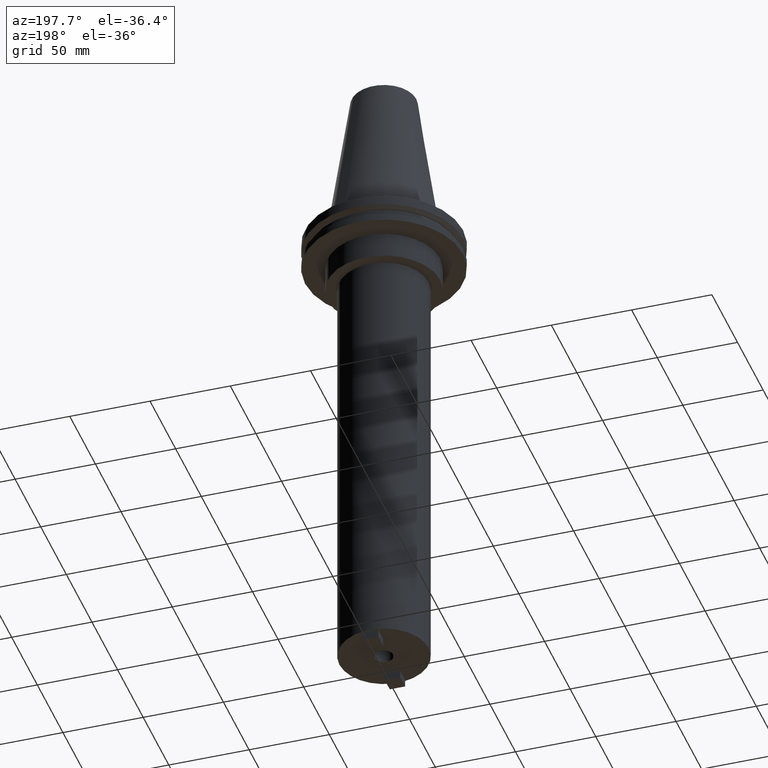
[diagram: clean part render]
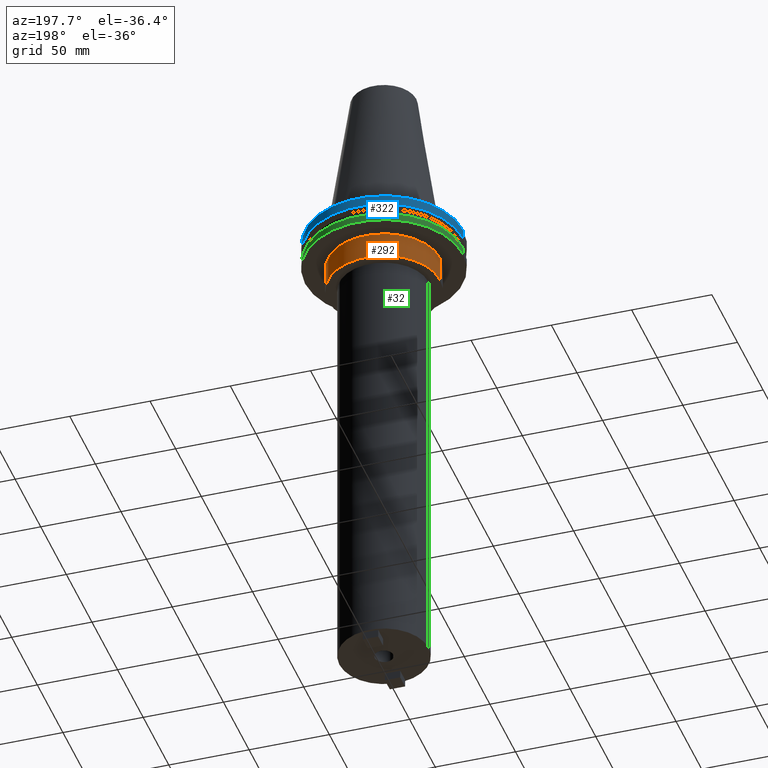
[diagram: same view with three faces highlighted in distinct colors, each labeled with its STEP entity id]
A machine part, auxiliary view with three faces highlighted in distinct colors.
Their STEP definitions:

[orange] entity #292 — the highlighted cylindrical surface (partial cylindrical patch) has radius 34.925 mm, axis along (-0, -0, 1).
#42 = LINE ( 'NONE', #802, #173 ) ;
#66 = CARTESIAN_POINT ( 'NONE',  ( 0.000000000000000000, 0.000000000000000000, -35.04999999999999716 ) ) ;
#70 = DIRECTION ( 'NONE',  ( 1.000000000000000000, 0.000000000000000000, 0.000000000000000000 ) ) ;
#85 = ORIENTED_EDGE ( 'NONE', *, *, #213, .T. ) ;
#88 = DIRECTION ( 'NONE',  ( 1.000000000000000000, 0.000000000000000000, 0.000000000000000000 ) ) ;
#116 = FACE_OUTER_BOUND ( 'NONE', #900, .T. ) ;
#125 = VERTEX_POINT ( 'NONE', #175 ) ;
#161 = DIRECTION ( 'NONE',  ( -0.000000000000000000, -0.000000000000000000, 1.000000000000000000 ) ) ;
#173 = VECTOR ( 'NONE', #1042, 1000.000000000000000 ) ;
#175 = CARTESIAN_POINT ( 'NONE',  ( 34.92499999999999716, 0.000000000000000000, -35.04999999999999716 ) ) ;
#188 = CIRCLE ( 'NONE', #475, 34.92499999999999716 ) ;
#194 = CARTESIAN_POINT ( 'NONE',  ( 0.000000000000000000, 0.000000000000000000, 101.5999999999999943 ) ) ;
#203 = VECTOR ( 'NONE', #377, 1000.000000000000000 ) ;
#213 = EDGE_CURVE ( 'NONE', #923, #1003, #970, .T. ) ;
#292 = ADVANCED_FACE ( 'NONE', ( #116 ), #706, .T. ) ;
#328 = VERTEX_POINT ( 'NONE', #961 ) ;
#373 = DIRECTION ( 'NONE',  ( -0.000000000000000000, -0.000000000000000000, 1.000000000000000000 ) ) ;
#377 = DIRECTION ( 'NONE',  ( -0.000000000000000000, -0.000000000000000000, 1.000000000000000000 ) ) ;
#445 = CARTESIAN_POINT ( 'NONE',  ( -34.92499999999999716, 4.277078946022130887E-15, 101.5999999999999943 ) ) ;
#475 = AXIS2_PLACEMENT_3D ( 'NONE', #835, #506, #70 ) ;
#506 = DIRECTION ( 'NONE',  ( -0.000000000000000000, -0.000000000000000000, 1.000000000000000000 ) ) ;
#563 = EDGE_CURVE ( 'NONE', #125, #328, #42, .T. ) ;
#658 = ORIENTED_EDGE ( 'NONE', *, *, #1081, .F. ) ;
#668 = ORIENTED_EDGE ( 'NONE', *, *, #701, .T. ) ;
#701 = EDGE_CURVE ( 'NONE', #125, #923, #945, .T. ) ;
#706 = CYLINDRICAL_SURFACE ( 'NONE', #944, 34.92499999999999716 ) ;
#801 = ORIENTED_EDGE ( 'NONE', *, *, #563, .F. ) ;
#802 = CARTESIAN_POINT ( 'NONE',  ( 34.92499999999999716, 0.000000000000000000, 101.5999999999999943 ) ) ;
#835 = CARTESIAN_POINT ( 'NONE',  ( 0.000000000000000000, 0.000000000000000000, -19.04999999999999716 ) ) ;
#900 = EDGE_LOOP ( 'NONE', ( #668, #85, #658, #801 ) ) ;
#923 = VERTEX_POINT ( 'NONE', #1022 ) ;
#944 = AXIS2_PLACEMENT_3D ( 'NONE', #194, #373, #1043 ) ;
#945 = CIRCLE ( 'NONE', #1055, 34.92499999999999716 ) ;
#953 = CARTESIAN_POINT ( 'NONE',  ( -34.92499999999999716, 4.277078946022130887E-15, -19.04999999999999716 ) ) ;
#961 = CARTESIAN_POINT ( 'NONE',  ( 34.92499999999999716, 0.000000000000000000, -19.04999999999999716 ) ) ;
#970 = LINE ( 'NONE', #445, #203 ) ;
#1003 = VERTEX_POINT ( 'NONE', #953 ) ;
#1022 = CARTESIAN_POINT ( 'NONE',  ( -34.92499999999999716, 4.277078946022130887E-15, -35.04999999999999716 ) ) ;
#1042 = DIRECTION ( 'NONE',  ( -0.000000000000000000, -0.000000000000000000, 1.000000000000000000 ) ) ;
#1043 = DIRECTION ( 'NONE',  ( 1.000000000000000000, 0.000000000000000000, 0.000000000000000000 ) ) ;
#1055 = AXIS2_PLACEMENT_3D ( 'NONE', #66, #161, #88 ) ;
#1081 = EDGE_CURVE ( 'NONE', #328, #1003, #188, .T. ) ;

[blue] entity #322 — the highlighted cylindrical surface (partial cylindrical patch) has radius 49.215 mm, axis along (-0, -0, 1).
#4 = VECTOR ( 'NONE', #315, 1000.000000000000000 ) ;
#27 = ORIENTED_EDGE ( 'NONE', *, *, #690, .T. ) ;
#41 = VERTEX_POINT ( 'NONE', #418 ) ;
#48 = AXIS2_PLACEMENT_3D ( 'NONE', #1063, #149, #653 ) ;
#121 = AXIS2_PLACEMENT_3D ( 'NONE', #779, #536, #365 ) ;
#128 = CARTESIAN_POINT ( 'NONE',  ( 49.21499999999999631, 0.000000000000000000, -1.499999999999987566 ) ) ;
#139 = VERTEX_POINT ( 'NONE', #189 ) ;
#149 = DIRECTION ( 'NONE',  ( -0.000000000000000000, -0.000000000000000000, 1.000000000000000000 ) ) ;
#176 = CARTESIAN_POINT ( 'NONE',  ( 49.21499999999999631, 0.000000000000000000, 101.5999999999999943 ) ) ;
#185 = EDGE_LOOP ( 'NONE', ( #283, #27, #812, #691 ) ) ;
#189 = CARTESIAN_POINT ( 'NONE',  ( 49.21500000000000341, 0.000000000000000000, -7.602389855251287187 ) ) ;
#223 = CIRCLE ( 'NONE', #48, 49.21500000000000341 ) ;
#244 = LINE ( 'NONE', #813, #4 ) ;
#283 = ORIENTED_EDGE ( 'NONE', *, *, #444, .T. ) ;
#284 = DIRECTION ( 'NONE',  ( 1.000000000000000000, 0.000000000000000000, 0.000000000000000000 ) ) ;
#294 = EDGE_CURVE ( 'NONE', #982, #745, #984, .T. ) ;
#303 = DIRECTION ( 'NONE',  ( -0.000000000000000000, -0.000000000000000000, 1.000000000000000000 ) ) ;
#315 = DIRECTION ( 'NONE',  ( -0.000000000000000000, -0.000000000000000000, 1.000000000000000000 ) ) ;
#322 = ADVANCED_FACE ( 'NONE', ( #790 ), #466, .T. ) ;
#365 = DIRECTION ( 'NONE',  ( 1.000000000000000000, 0.000000000000000000, 0.000000000000000000 ) ) ;
#403 = VECTOR ( 'NONE', #601, 1000.000000000000000 ) ;
#418 = CARTESIAN_POINT ( 'NONE',  ( -49.21500000000000341, 6.027099222003699404E-15, -7.602389855251287187 ) ) ;
#444 = EDGE_CURVE ( 'NONE', #139, #41, #223, .T. ) ;
#466 = CYLINDRICAL_SURFACE ( 'NONE', #121, 49.21499999999999631 ) ;
#536 = DIRECTION ( 'NONE',  ( -0.000000000000000000, -0.000000000000000000, 1.000000000000000000 ) ) ;
#553 = CARTESIAN_POINT ( 'NONE',  ( 0.000000000000000000, 0.000000000000000000, -1.499999999999987566 ) ) ;
#601 = DIRECTION ( 'NONE',  ( -0.000000000000000000, -0.000000000000000000, 1.000000000000000000 ) ) ;
#653 = DIRECTION ( 'NONE',  ( 1.000000000000000000, 0.000000000000000000, 0.000000000000000000 ) ) ;
#690 = EDGE_CURVE ( 'NONE', #41, #745, #244, .T. ) ;
#691 = ORIENTED_EDGE ( 'NONE', *, *, #916, .F. ) ;
#745 = VERTEX_POINT ( 'NONE', #904 ) ;
#779 = CARTESIAN_POINT ( 'NONE',  ( 0.000000000000000000, 0.000000000000000000, 101.5999999999999943 ) ) ;
#790 = FACE_OUTER_BOUND ( 'NONE', #185, .T. ) ;
#812 = ORIENTED_EDGE ( 'NONE', *, *, #294, .F. ) ;
#813 = CARTESIAN_POINT ( 'NONE',  ( -49.21499999999999631, 6.027099222003697826E-15, 101.5999999999999943 ) ) ;
#856 = AXIS2_PLACEMENT_3D ( 'NONE', #553, #303, #284 ) ;
#904 = CARTESIAN_POINT ( 'NONE',  ( -49.21499999999999631, 6.027099222003697826E-15, -1.499999999999987566 ) ) ;
#916 = EDGE_CURVE ( 'NONE', #139, #982, #1030, .T. ) ;
#982 = VERTEX_POINT ( 'NONE', #128 ) ;
#984 = CIRCLE ( 'NONE', #856, 49.21499999999999631 ) ;
#1030 = LINE ( 'NONE', #176, #403 ) ;
#1063 = CARTESIAN_POINT ( 'NONE',  ( 0.000000000000000000, 0.000000000000000000, -7.602389855251287187 ) ) ;

[green] entity #32 — the highlighted cylindrical surface (partial cylindrical patch) has radius 49.215 mm, axis along (-0, -0, 1).
#26 = DIRECTION ( 'NONE',  ( -0.000000000000000000, -0.000000000000000000, 1.000000000000000000 ) ) ;
#32 = ADVANCED_FACE ( 'NONE', ( #1077 ), #314, .T. ) ;
#89 = AXIS2_PLACEMENT_3D ( 'NONE', #160, #655, #165 ) ;
#95 = CARTESIAN_POINT ( 'NONE',  ( -49.21499999999998920, 6.027099222003697037E-15, 101.5999999999999943 ) ) ;
#112 = DIRECTION ( 'NONE',  ( 1.000000000000000000, 0.000000000000000000, 0.000000000000000000 ) ) ;
#160 = CARTESIAN_POINT ( 'NONE',  ( 0.000000000000000000, 0.000000000000000000, 101.5999999999999943 ) ) ;
#165 = DIRECTION ( 'NONE',  ( 1.000000000000000000, 0.000000000000000000, 0.000000000000000000 ) ) ;
#174 = EDGE_CURVE ( 'NONE', #869, #638, #768, .T. ) ;
#179 = CARTESIAN_POINT ( 'NONE',  ( 49.21499999999998920, 0.000000000000000000, -19.04999999999999716 ) ) ;
#286 = ORIENTED_EDGE ( 'NONE', *, *, #470, .F. ) ;
#314 = CYLINDRICAL_SURFACE ( 'NONE', #89, 49.21499999999998920 ) ;
#324 = CARTESIAN_POINT ( 'NONE',  ( 0.000000000000000000, 0.000000000000000000, -14.65761014474876944 ) ) ;
#383 = CIRCLE ( 'NONE', #651, 49.21499999999998920 ) ;
#404 = ORIENTED_EDGE ( 'NONE', *, *, #899, .T. ) ;
#405 = CARTESIAN_POINT ( 'NONE',  ( -49.21499999999998920, 6.027099222003697037E-15, -14.65761014474876944 ) ) ;
#416 = EDGE_LOOP ( 'NONE', ( #1083, #404, #286, #1060 ) ) ;
#456 = LINE ( 'NONE', #1044, #545 ) ;
#460 = DIRECTION ( 'NONE',  ( -0.000000000000000000, -0.000000000000000000, 1.000000000000000000 ) ) ;
#470 = EDGE_CURVE ( 'NONE', #827, #726, #383, .T. ) ;
#519 = CARTESIAN_POINT ( 'NONE',  ( 49.21499999999998920, 0.000000000000000000, -14.65761014474876944 ) ) ;
#542 = AXIS2_PLACEMENT_3D ( 'NONE', #606, #760, #112 ) ;
#545 = VECTOR ( 'NONE', #460, 1000.000000000000000 ) ;
#606 = CARTESIAN_POINT ( 'NONE',  ( 0.000000000000000000, 0.000000000000000000, -19.04999999999999716 ) ) ;
#638 = VERTEX_POINT ( 'NONE', #978 ) ;
#651 = AXIS2_PLACEMENT_3D ( 'NONE', #324, #667, #998 ) ;
#655 = DIRECTION ( 'NONE',  ( -0.000000000000000000, -0.000000000000000000, 1.000000000000000000 ) ) ;
#667 = DIRECTION ( 'NONE',  ( -0.000000000000000000, -0.000000000000000000, 1.000000000000000000 ) ) ;
#688 = LINE ( 'NONE', #95, #735 ) ;
#726 = VERTEX_POINT ( 'NONE', #405 ) ;
#735 = VECTOR ( 'NONE', #26, 1000.000000000000000 ) ;
#760 = DIRECTION ( 'NONE',  ( -0.000000000000000000, -0.000000000000000000, 1.000000000000000000 ) ) ;
#768 = CIRCLE ( 'NONE', #542, 49.21499999999998920 ) ;
#827 = VERTEX_POINT ( 'NONE', #519 ) ;
#869 = VERTEX_POINT ( 'NONE', #179 ) ;
#899 = EDGE_CURVE ( 'NONE', #638, #726, #688, .T. ) ;
#978 = CARTESIAN_POINT ( 'NONE',  ( -49.21499999999998920, 6.027099222003697037E-15, -19.04999999999999716 ) ) ;
#998 = DIRECTION ( 'NONE',  ( 1.000000000000000000, 0.000000000000000000, 0.000000000000000000 ) ) ;
#1044 = CARTESIAN_POINT ( 'NONE',  ( 49.21499999999998920, 0.000000000000000000, 101.5999999999999943 ) ) ;
#1048 = EDGE_CURVE ( 'NONE', #869, #827, #456, .T. ) ;
#1060 = ORIENTED_EDGE ( 'NONE', *, *, #1048, .F. ) ;
#1077 = FACE_OUTER_BOUND ( 'NONE', #416, .T. ) ;
#1083 = ORIENTED_EDGE ( 'NONE', *, *, #174, .T. ) ;